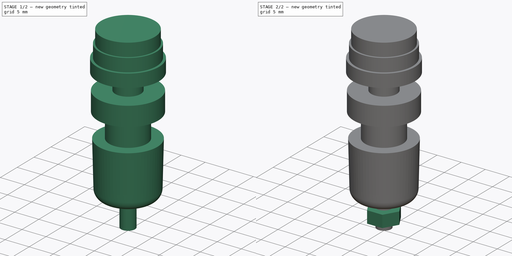
[diagram: build sequence overview — one tinted view per stage of 2, left to right]
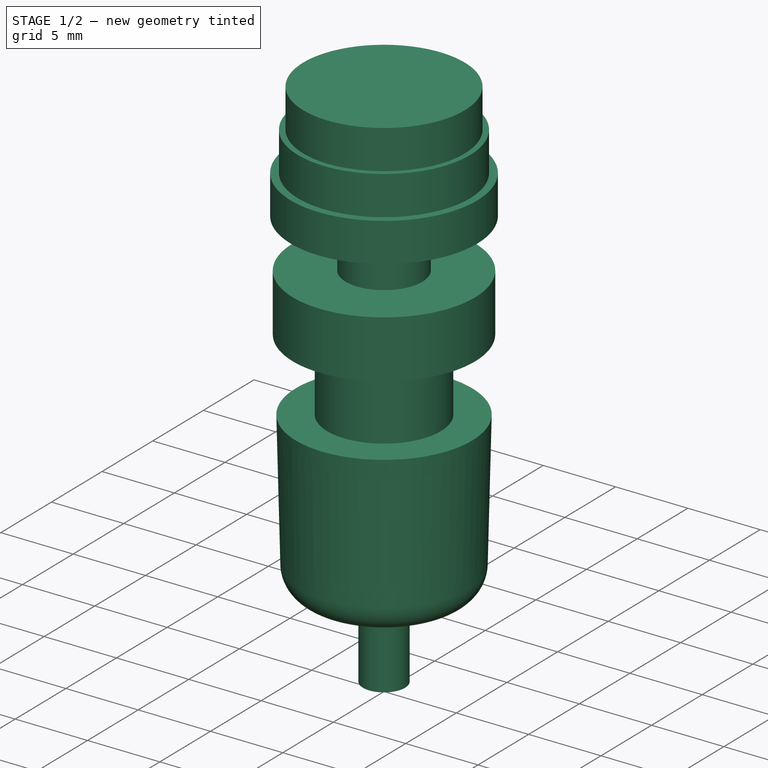
[diagram: stage 1 of 2 — iso view after this stage's code; geometry added in this stage tinted green]
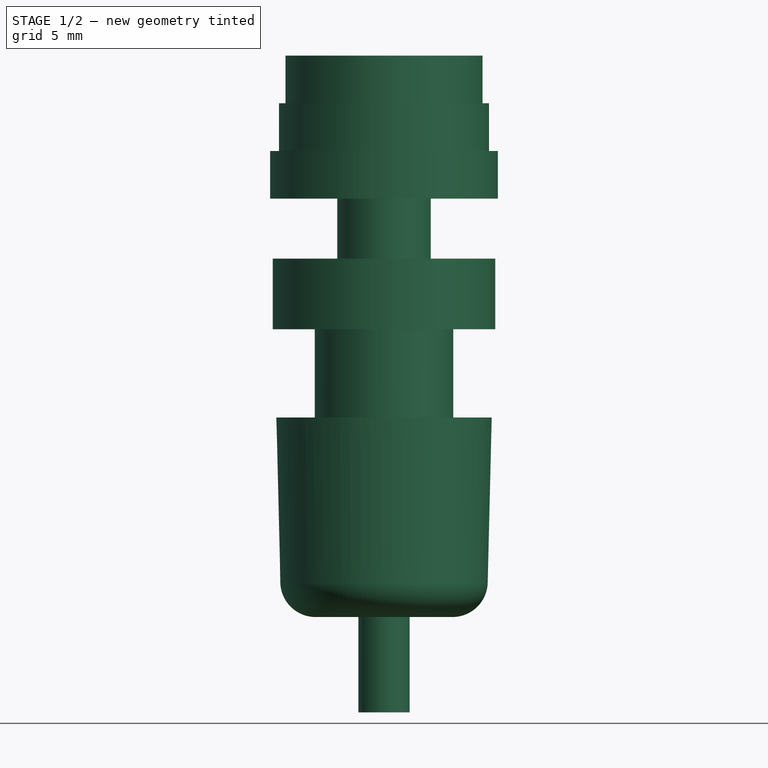
[diagram: stage 1 of 2 — front view after this stage's code; geometry added in this stage tinted green]
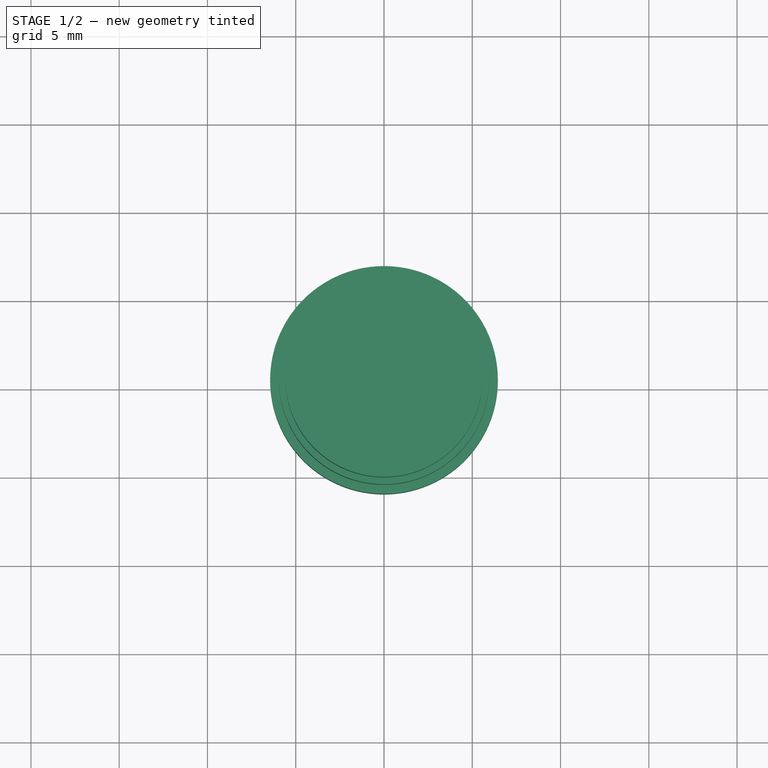
[diagram: stage 1 of 2 — top view after this stage's code; geometry added in this stage tinted green]
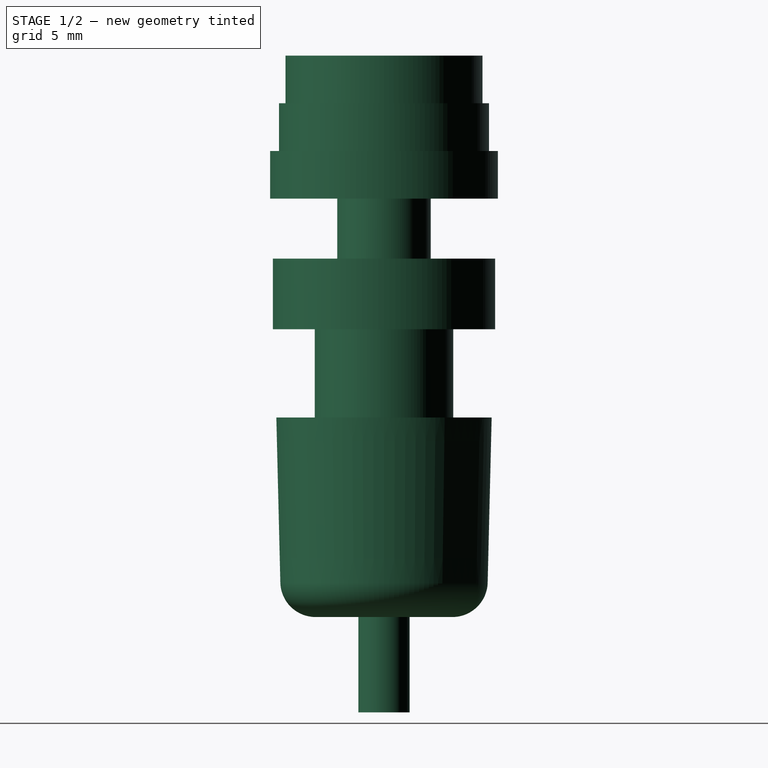
[diagram: stage 1 of 2 — right view after this stage's code; geometry added in this stage tinted green]
FCSTD DOCUMENT  (FreeCAD 0.21R33771 (Git))
Label: MiniPyroClipRed
License: All rights reserved
LicenseURL: http://en.wikipedia.org/wiki/All_rights_reserved
objects: Sketcher::SketchObject×3, PartDesign::Revolution×2, Part::Feature×2, PartDesign::Pad×1, PartDesign::Body×1
note: 12 computed .brp shape members not serialized (recipe doc carries the construction recipe); baked Part::Feature solids carry a one-line shape summary decoded from their .brp

FEATURE [Sketcher::SketchObject] Sketch
  FullyConstrained = true
  MapMode = 5
  Placement = pos=(0,0,0) rot=(1,0,0;1.5708rad)
  Support = -> [XZ_Plane]
  sketch-geometry (18):
    g0: LineSegment StartX=0 StartY=0 StartZ=0 EndX=3.875 EndY=-4e-16 EndZ=0
    g1: ArcOfCircle CenterX=3.875 CenterY=2 CenterZ=0 NormalX=0 NormalY=0 NormalZ=1 AngleXU=0 Radius=2 StartAngle=4.71239 EndAngle=6.28319
    g2: LineSegment StartX=5.875 StartY=2 StartZ=0 EndX=6.1 EndY=11.3 EndZ=0
    g3: LineSegment StartX=6.1 StartY=11.3 StartZ=0 EndX=3.925 EndY=11.3 EndZ=0
    g4: LineSegment StartX=3.925 StartY=11.3 StartZ=0 EndX=3.925 EndY=16.3 EndZ=0
    g5: LineSegment StartX=3.925 StartY=16.3 StartZ=0 EndX=6.3 EndY=16.3 EndZ=0
    g6: LineSegment StartX=6.3 StartY=16.3 StartZ=0 EndX=6.3 EndY=20.3 EndZ=0
    g7: LineSegment StartX=6.3 StartY=20.3 StartZ=0 EndX=2.65 EndY=20.3 EndZ=0
    g8: LineSegment StartX=2.65 StartY=20.3 StartZ=0 EndX=2.65 EndY=23.7 EndZ=0
    g9: LineSegment StartX=2.65 StartY=23.7 StartZ=0 EndX=6.45 EndY=23.7 EndZ=0
    g10: LineSegment StartX=6.45 StartY=23.7 StartZ=0 EndX=6.45 EndY=26.4 EndZ=0
    g11: LineSegment StartX=6.45 StartY=26.4 StartZ=0 EndX=5.95 EndY=26.4 EndZ=0
    g12: LineSegment StartX=5.95 StartY=26.4 StartZ=0 EndX=5.95 EndY=29.1 EndZ=0
    g13: LineSegment StartX=5.95 StartY=29.1 StartZ=0 EndX=5.58 EndY=29.1 EndZ=0
    g14: LineSegment StartX=5.58 StartY=29.1 StartZ=0 EndX=5.58 EndY=31.8 EndZ=0
    g15: LineSegment StartX=5.58 StartY=31.8 StartZ=0 EndX=3.1 EndY=31.8 EndZ=0
    g16: LineSegment StartX=3.1 StartY=31.8 StartZ=0 EndX=0 EndY=26.8 EndZ=0
    g17: LineSegment StartX=0 StartY=26.8 StartZ=0 EndX=0 EndY=0 EndZ=0
  constraints (54):
    c: Coincident(g0,g-1)
    c: PointOnObject(g0,g-1)
    c: Coincident(g1,g0)
    c: Coincident(g2,g1)
    c: Coincident(g3,g2)
    c: Horizontal(g3)
    c: Coincident(g4,g3)
    c: Vertical(g4)
    c: Coincident(g5,g4)
    c: Horizontal(g5)
    c: Coincident(g6,g5)
    c: Vertical(g6)
    c: Coincident(g7,g6)
    c: Horizontal(g7)
    c: Coincident(g8,g7)
    c: Vertical(g8)
    c: Coincident(g9,g8)
    c: Coincident(g11,g10)
    c: Horizontal(g11)
    c: Coincident(g15,g14)
    c: Horizontal(g15)
    c: Coincident(g16,g15)
    c: Coincident(g17,g16)
    c: Coincident(g17,g0)
    c: Vertical(g17)
    c: Horizontal(g9)
    c: DistanceX(g0,g1) = 5.875
    c: Horizontal(g1,g1)
    c: Vertical(g0,g1)
    c: Radius(g1) = 2
    c: DistanceY(g0,g2) = 11.3
    c: DistanceX(g0,g3) = 3.925
    c: DistanceX(g0,g2) = 6.1
    c: DistanceY(g3,g4) = 5
    c: DistanceX(g0,g5) = 6.3
    c: DistanceY(g5,g6) = 4
    c: DistanceX(g0,g7) = 2.65
    c: DistanceY(g7,g8) = 3.4
    c: Coincident(g10,g9)
    c: DistanceY(g9,g10) = 2.7
    c: DistanceY(g12,g13) = 2.7
    c: Horizontal(g13)
    c: Coincident(g12,g11)
    c: Coincident(g12,g13)
    c: Vertical(g12)
    c: Coincident(g14,g13)
    c: Vertical(g14)
    c: DistanceY(g12,g14) = 2.7
    c: DistanceY(g16,g15) = 5
    c: DistanceX(g16,g15) = 3.1
    c: DistanceX(g16,g14) = 5.58
    c: DistanceX(g16,g12) = 5.95
    c: Vertical(g10)
    c: DistanceX(g16,g10) = 6.45
FEATURE [PartDesign::Revolution] Revolution
  Angle = 360
  Axis = (0,2e-16,1)
  Base = (0,0,0)
  Placement = pos=(0,0,0) rot=(1,0,0;1.5708rad)
  Profile = -> Sketch
  ReferenceAxis = -> Sketch [V_Axis]
  Reversed = true
FEATURE [Sketcher::SketchObject] Sketch001
  ExternalGeometry = -> [Sketch]
  FullyConstrained = true
  MapMode = 5
  Placement = pos=(0,0,0) rot=(1,0,0;1.5708rad)
  Support = -> [XZ_Plane]
  sketch-geometry (5):
    g0: LineSegment StartX=0 StartY=-5.4 StartZ=0 EndX=1.45 EndY=-5.4 EndZ=0
    g1: LineSegment StartX=1.45 StartY=-5.4 StartZ=0 EndX=1.45 EndY=29.1387 EndZ=0
    g2: LineSegment StartX=1.45 StartY=29.1387 StartZ=0 EndX=3.1 EndY=31.8 EndZ=0
    g3: LineSegment StartX=3.1 StartY=31.8 StartZ=0 EndX=0 EndY=31.8 EndZ=0
    g4: LineSegment StartX=0 StartY=31.8 StartZ=0 EndX=0 EndY=-5.4 EndZ=0
  constraints (14):
    c: PointOnObject(g0,g-2)
    c: Coincident(g1,g0)
    c: Vertical(g1)
    c: Coincident(g2,g1)
    c: Coincident(g2,g-3)
    c: Coincident(g3,g2)
    c: PointOnObject(g3,g-2)
    c: Coincident(g4,g3)
    c: Coincident(g4,g0)
    c: Horizontal(g0)
    c: DistanceX(g0,g0) = 1.45
    c: PointOnObject(g1,g-4)
    c: Horizontal(g3)
    c: DistanceY(g0,g3) = 37.2
FEATURE [PartDesign::Revolution] Revolution001
  Angle = 360
  Axis = (0,2e-16,1)
  Base = (0,0,0)
  BaseFeature = -> Revolution
  Placement = pos=(0,0,0) rot=(1,0,0;1.5708rad)
  Profile = -> Sketch001
  ReferenceAxis = -> Sketch001 [V_Axis]
  Reversed = true
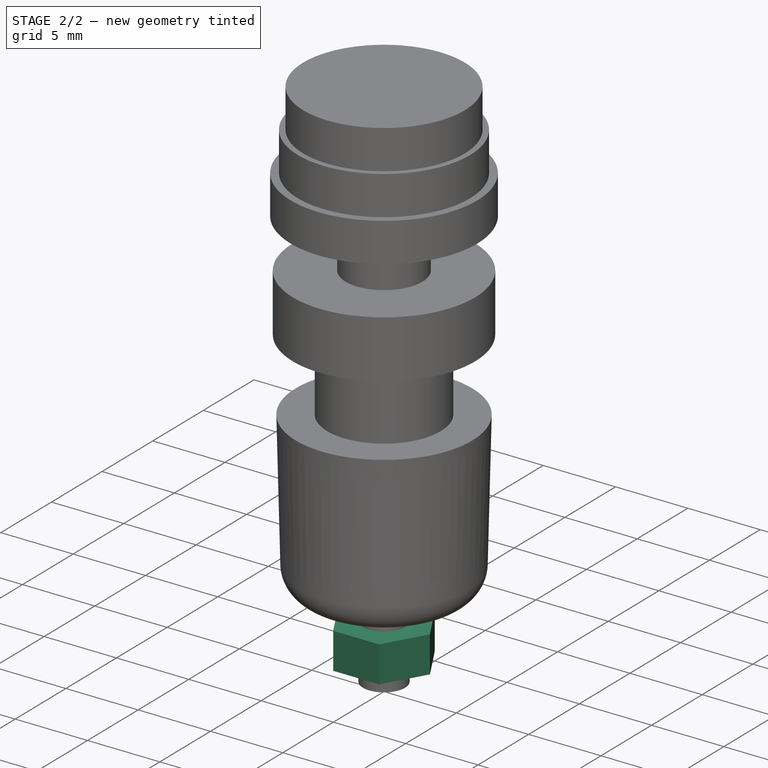
[diagram: stage 2 of 2 — iso view after this stage's code; geometry added in this stage tinted green]
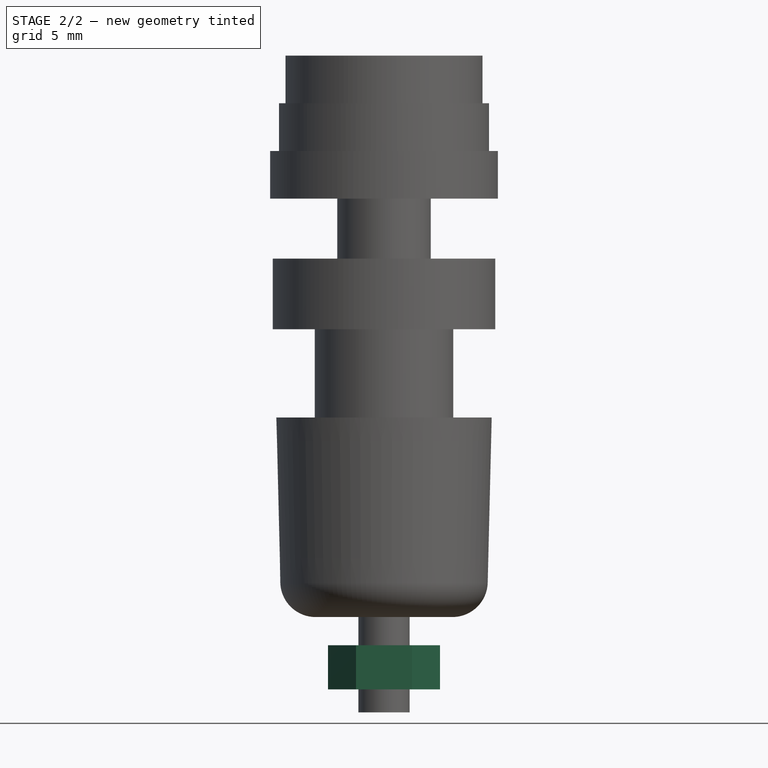
[diagram: stage 2 of 2 — front view after this stage's code; geometry added in this stage tinted green]
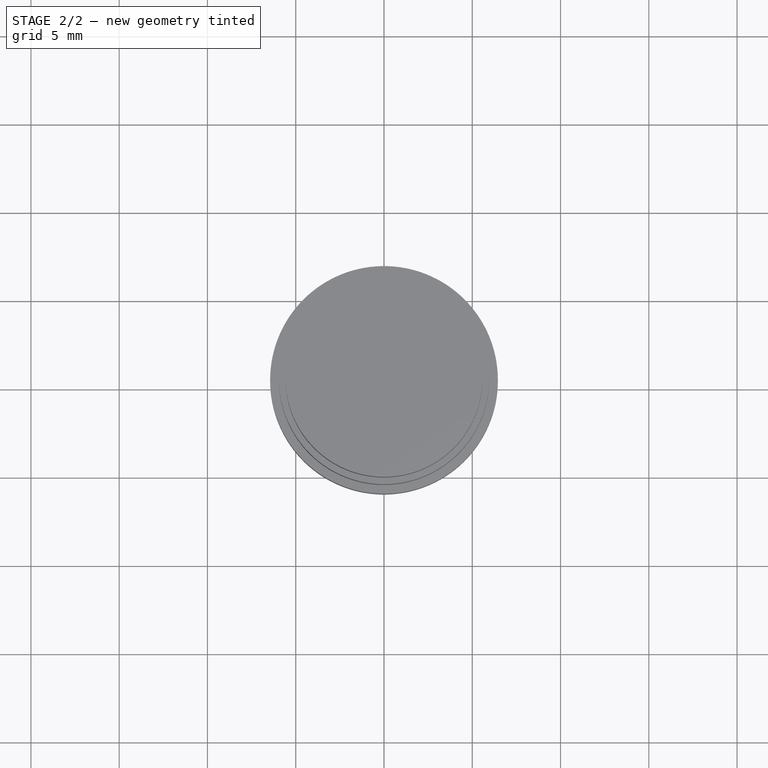
[diagram: stage 2 of 2 — top view after this stage's code; geometry added in this stage tinted green]
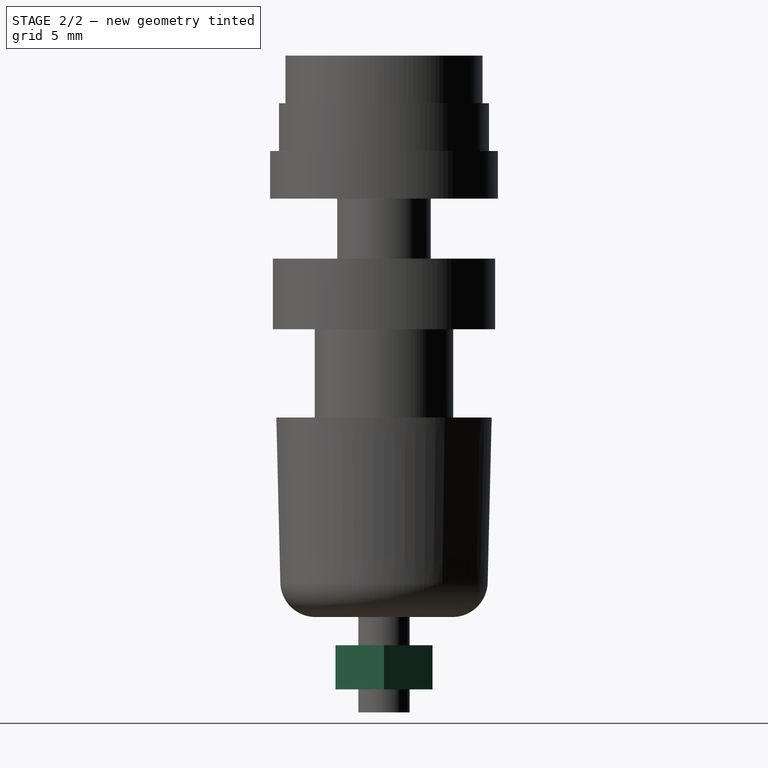
[diagram: stage 2 of 2 — right view after this stage's code; geometry added in this stage tinted green]
FEATURE [Sketcher::SketchObject] Sketch002
  AttachmentOffset = pos=(0,0,-1.6) rot=(0,0,1;0rad)
  FullyConstrained = true
  MapMode = 5
  Placement = pos=(0,0,-1.6) rot=(0,0,1;0rad)
  Support = -> [XY_Plane]
  sketch-geometry (7):
    g0: LineSegment StartX=1.58771 StartY=-2.75 StartZ=0 EndX=3.17543 EndY=0 EndZ=0
    g1: LineSegment StartX=3.17543 StartY=0 StartZ=0 EndX=1.58771 EndY=2.75 EndZ=0
    g2: LineSegment StartX=1.58771 StartY=2.75 StartZ=0 EndX=-1.58771 EndY=2.75 EndZ=0
    g3: LineSegment StartX=-1.58771 StartY=2.75 StartZ=0 EndX=-3.17543 EndY=0 EndZ=0
    g4: LineSegment StartX=-3.17543 StartY=0 StartZ=0 EndX=-1.58771 EndY=-2.75 EndZ=0
    g5: LineSegment StartX=-1.58771 StartY=-2.75 StartZ=0 EndX=1.58771 EndY=-2.75 EndZ=0
    g6: Circle CenterX=0 CenterY=0 CenterZ=0 NormalX=0 NormalY=0 NormalZ=1 AngleXU=0 Radius=3.17543
  constraints (16):
    c: Coincident(g0,g1)
    c: Coincident(g1,g2)
    c: Coincident(g2,g3)
    c: Coincident(g3,g4)
    c: Coincident(g4,g5)
    c: Coincident(g5,g0)
    c: Equal(g0, g1-g5) x5
    c: PointOnObject(g0,g6)
    c: PointOnObject(g1,g6)
    c: PointOnObject(g2,g6)
    c: PointOnObject(g3,g6)
    c: PointOnObject(g4,g6)
    c: PointOnObject(g5,g6)
    c: Coincident(g6,g-1)
    c: Horizontal(g3,g0)
    c: DistanceY(g4,g2) = 5.5
FEATURE [PartDesign::Pad] Pad  label="Pad__"
  BaseFeature = -> Revolution001
  Direction = (0,0,1)
  Length = 2.5
  Length2 = 10
  Placement = pos=(0,0,0) rot=(1,0,0;1.5708rad)
  Profile = -> Sketch002
  ReferenceAxis = -> Sketch002 [N_Axis]
  Reversed = true
  Type = 0
FEATURE [PartDesign::Body] Body
  Group = -> [Sketch,Revolution,Sketch001,Revolution001,Sketch002,Pad]
  Origin = -> Origin
  Tip = -> Pad
FEATURE [Part::Feature] Shape  label="Pad"
  shape: bbox 12.9 x 12.9 x 37.2 mm, 28 faces (baked)
FEATURE [Part::Feature] Shape001  label="Pad_"
  shape: bbox 12.9 x 12.9 x 37.2 mm, 28 faces (baked)
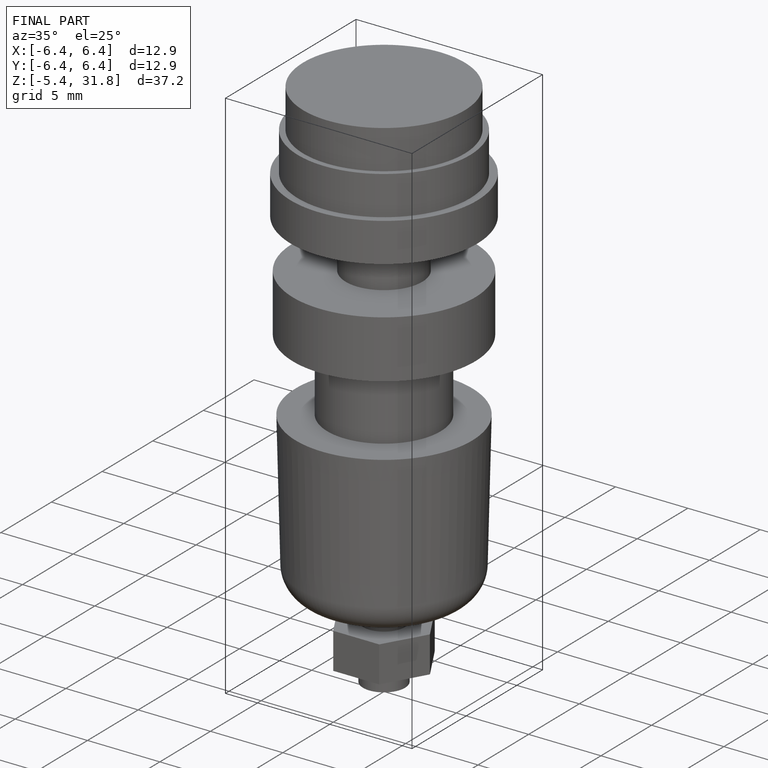
[diagram: finished part — iso view with bounding-box wireframe]
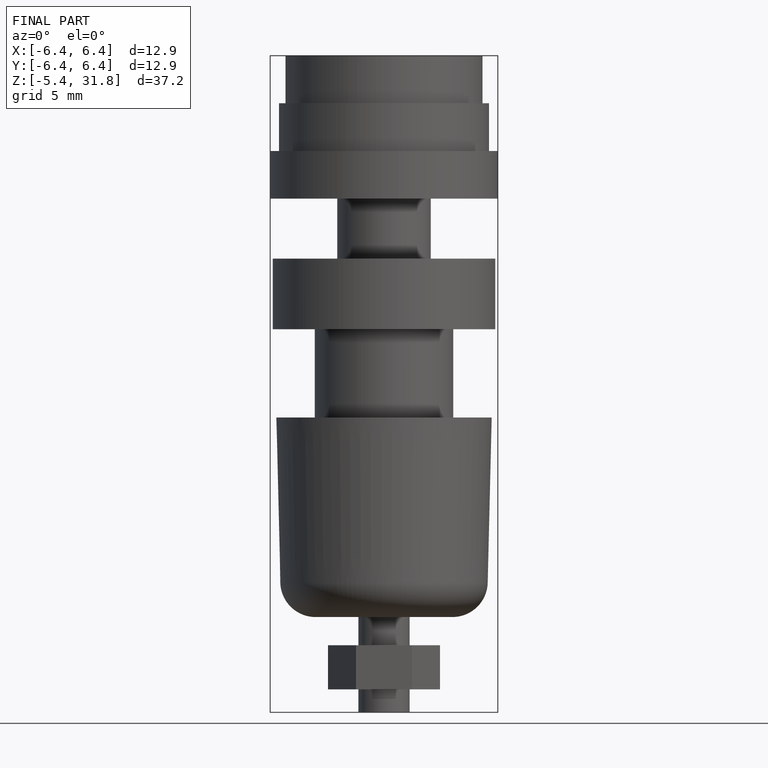
[diagram: finished part — front view with bounding-box wireframe]
